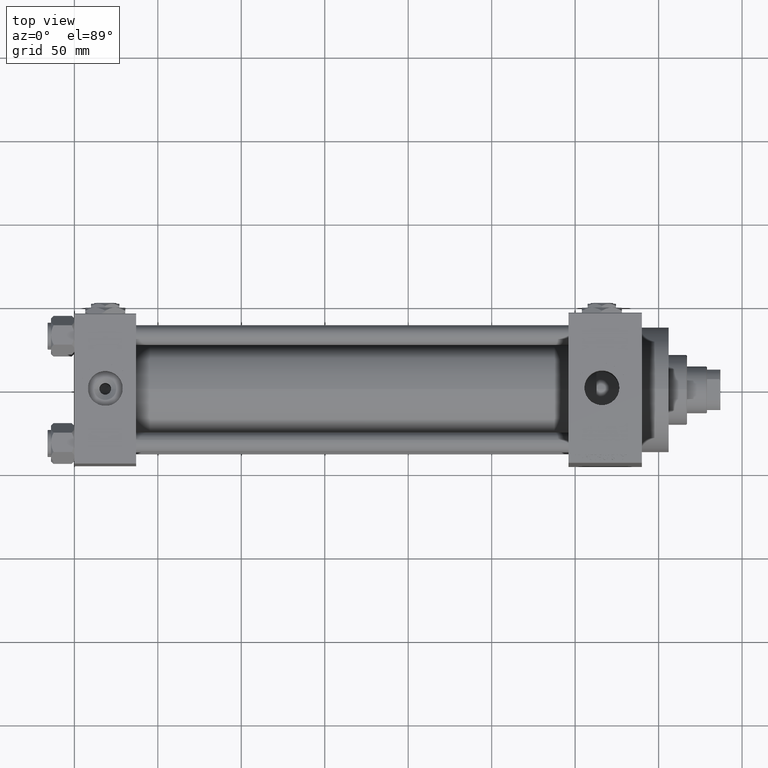
[diagram: clean part render]
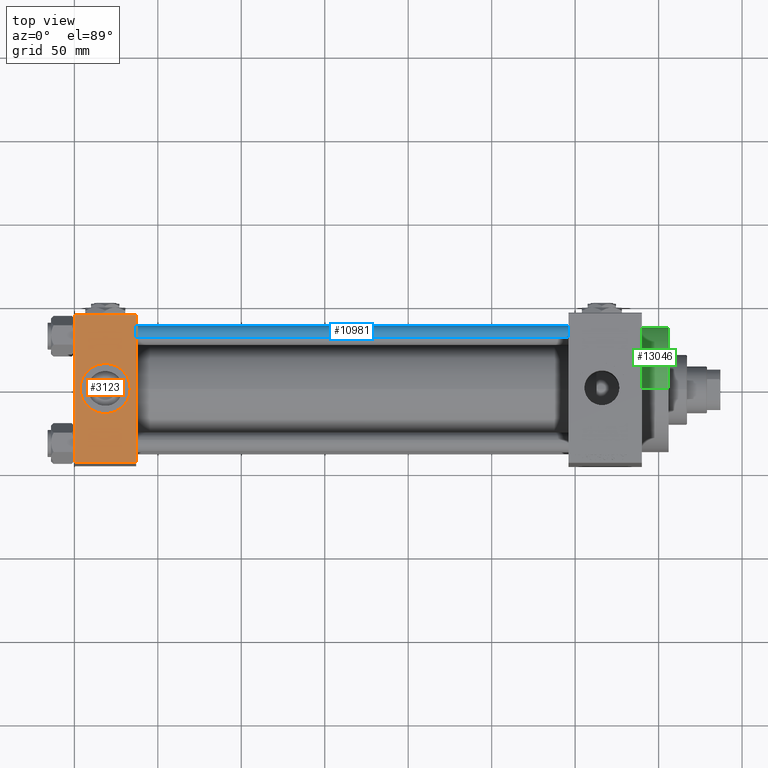
[diagram: same view with three faces highlighted in distinct colors, each labeled with its STEP entity id]
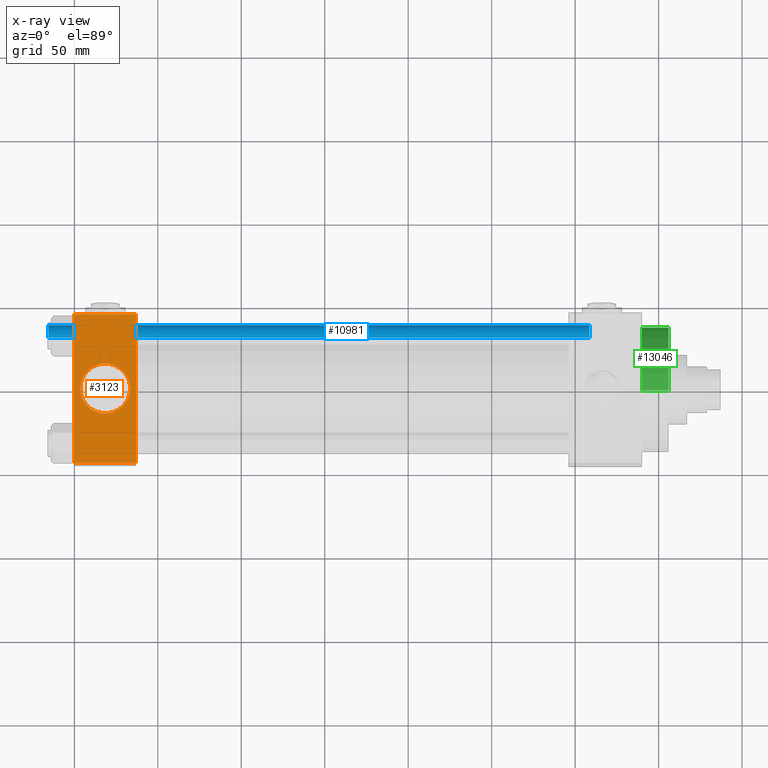
[diagram: x-ray of the same camera — body ghosted, the three highlighted faces saturated]
A machine part, top view with three faces highlighted in distinct colors.
The next image is the same camera in x-ray (body ghosted, the three faces saturated) — at least one of them is partly hidden behind the body in this view.
Their STEP definitions:

[orange] entity #3123 — the highlighted planar face has unit normal (0, 0, -1).
#1158 = DIRECTION ( 'NONE',  ( 1.000000000000000000, 0.000000000000000000, 0.000000000000000000 ) ) ;
#2784 = AXIS2_PLACEMENT_3D ( 'NONE', #29391, #29635, #30124 ) ;
#3123 = ADVANCED_FACE ( 'NONE', ( #22386, #5403 ), #20367, .F. ) ;
#3482 = EDGE_CURVE ( 'NONE', #12128, #29692, #39502, .T. ) ;
#4700 = ORIENTED_EDGE ( 'NONE', *, *, #14374, .F. ) ;
#5403 = FACE_OUTER_BOUND ( 'NONE', #14397, .T. ) ;
#5641 = LINE ( 'NONE', #20613, #41738 ) ;
#6182 = EDGE_LOOP ( 'NONE', ( #4700, #17608 ) ) ;
#6424 = AXIS2_PLACEMENT_3D ( 'NONE', #9145, #31827, #47033 ) ;
#8345 = CARTESIAN_POINT ( 'NONE',  ( 0.000000000000000000, 44.49999999999998579, 45.00000000000001421 ) ) ;
#8960 = CARTESIAN_POINT ( 'NONE',  ( 37.00000000000000000, 44.99999999999998579, 45.00000000000001421 ) ) ;
#9145 = CARTESIAN_POINT ( 'NONE',  ( 37.00000000000000000, 44.99999999999998579, 45.00000000000001421 ) ) ;
#12049 = CARTESIAN_POINT ( 'NONE',  ( 0.000000000000000000, 44.99999999999998579, 45.00000000000001421 ) ) ;
#12128 = VERTEX_POINT ( 'NONE', #20699 ) ;
#12811 = DIRECTION ( 'NONE',  ( -1.000000000000000000, 0.000000000000000000, 0.000000000000000000 ) ) ;
#14374 = EDGE_CURVE ( 'NONE', #34368, #38148, #14782, .T. ) ;
#14397 = EDGE_LOOP ( 'NONE', ( #19428, #33898, #38912, #49048 ) ) ;
#14782 = CIRCLE ( 'NONE', #23422, 15.00000000000000355 ) ;
#15013 = EDGE_CURVE ( 'NONE', #23931, #45213, #5641, .T. ) ;
#15538 = DIRECTION ( 'NONE',  ( 0.000000000000000000, -1.000000000000000000, -1.541976423090495387E-16 ) ) ;
#15754 = EDGE_CURVE ( 'NONE', #12128, #45213, #16933, .T. ) ;
#15794 = EDGE_CURVE ( 'NONE', #38148, #34368, #39404, .T. ) ;
#16933 = LINE ( 'NONE', #8960, #36196 ) ;
#17608 = ORIENTED_EDGE ( 'NONE', *, *, #15794, .F. ) ;
#19428 = ORIENTED_EDGE ( 'NONE', *, *, #22377, .T. ) ;
#20157 = CARTESIAN_POINT ( 'NONE',  ( 0.000000000000000000, -44.49999999999995737, 45.00000000000000000 ) ) ;
#20367 = PLANE ( 'NONE',  #6424 ) ;
#20613 = CARTESIAN_POINT ( 'NONE',  ( 37.00000000000000000, -44.49999999999998579, 45.00000000000000000 ) ) ;
#20699 = CARTESIAN_POINT ( 'NONE',  ( 37.00000000000000000, 44.49999999999998579, 45.00000000000001421 ) ) ;
#22377 = EDGE_CURVE ( 'NONE', #29692, #23931, #46442, .T. ) ;
#22386 = FACE_BOUND ( 'NONE', #6182, .T. ) ;
#23422 = AXIS2_PLACEMENT_3D ( 'NONE', #47887, #43902, #28454 ) ;
#23931 = VERTEX_POINT ( 'NONE', #20157 ) ;
#26953 = CARTESIAN_POINT ( 'NONE',  ( 0.000000000000000000, 44.49999999999998579, 45.00000000000001421 ) ) ;
#27754 = CARTESIAN_POINT ( 'NONE',  ( 33.50000000000000000, -8.673617379884038628E-15, 45.00000000000000711 ) ) ;
#28454 = DIRECTION ( 'NONE',  ( 1.000000000000000000, 0.000000000000000000, 0.000000000000000000 ) ) ;
#29391 = CARTESIAN_POINT ( 'NONE',  ( 18.50000000000000000, -8.673617379884038628E-15, 45.00000000000000711 ) ) ;
#29448 = CARTESIAN_POINT ( 'NONE',  ( 3.499999999999997780, -6.836647181163008250E-15, 45.00000000000000711 ) ) ;
#29635 = DIRECTION ( 'NONE',  ( 0.000000000000000000, 0.000000000000000000, 1.000000000000000000 ) ) ;
#29692 = VERTEX_POINT ( 'NONE', #26953 ) ;
#30124 = DIRECTION ( 'NONE',  ( 1.000000000000000000, 0.000000000000000000, 0.000000000000000000 ) ) ;
#31827 = DIRECTION ( 'NONE',  ( 0.000000000000000000, 1.541976423090495633E-16, -1.000000000000000000 ) ) ;
#32139 = DIRECTION ( 'NONE',  ( 0.000000000000000000, -1.000000000000000000, -1.541976423090495387E-16 ) ) ;
#33898 = ORIENTED_EDGE ( 'NONE', *, *, #15013, .T. ) ;
#34368 = VERTEX_POINT ( 'NONE', #27754 ) ;
#35884 = VECTOR ( 'NONE', #12811, 1000.000000000000000 ) ;
#36196 = VECTOR ( 'NONE', #32139, 1000.000000000000000 ) ;
#38148 = VERTEX_POINT ( 'NONE', #29448 ) ;
#38200 = CARTESIAN_POINT ( 'NONE',  ( 37.00000000000000000, -44.49999999999995737, 45.00000000000000000 ) ) ;
#38912 = ORIENTED_EDGE ( 'NONE', *, *, #15754, .F. ) ;
#39404 = CIRCLE ( 'NONE', #2784, 15.00000000000000355 ) ;
#39502 = LINE ( 'NONE', #8345, #35884 ) ;
#41738 = VECTOR ( 'NONE', #1158, 1000.000000000000000 ) ;
#42320 = VECTOR ( 'NONE', #15538, 1000.000000000000000 ) ;
#43902 = DIRECTION ( 'NONE',  ( 0.000000000000000000, 0.000000000000000000, 1.000000000000000000 ) ) ;
#45213 = VERTEX_POINT ( 'NONE', #38200 ) ;
#46442 = LINE ( 'NONE', #12049, #42320 ) ;
#47033 = DIRECTION ( 'NONE',  ( 0.000000000000000000, 1.000000000000000000, 1.541976423090495633E-16 ) ) ;
#47887 = CARTESIAN_POINT ( 'NONE',  ( 18.50000000000000000, -8.673617379884038628E-15, 45.00000000000000711 ) ) ;
#49048 = ORIENTED_EDGE ( 'NONE', *, *, #3482, .T. ) ;

[blue] entity #10981 — the highlighted cylindrical surface (edge-blend (fillet) strip) has radius 6 mm, axis along (-1, -0, 0).
#866 = VERTEX_POINT ( 'NONE', #13135 ) ;
#4129 = ORIENTED_EDGE ( 'NONE', *, *, #48001, .F. ) ;
#4621 = VECTOR ( 'NONE', #19554, 1000.000000000000000 ) ;
#8235 = FACE_OUTER_BOUND ( 'NONE', #16819, .T. ) ;
#8491 = CYLINDRICAL_SURFACE ( 'NONE', #36958, 6.000000000000000888 ) ;
#9989 = DIRECTION ( 'NONE',  ( -0.000000000000000000, -0.000000000000000000, -1.000000000000000000 ) ) ;
#10981 = ADVANCED_FACE ( 'NONE', ( #8235 ), #8491, .T. ) ;
#12899 = DIRECTION ( 'NONE',  ( 1.000000000000000000, 0.000000000000000000, 0.000000000000000000 ) ) ;
#13135 = CARTESIAN_POINT ( 'NONE',  ( -6.000000000000000888, 0.000000000000000000, 324.5000000000001137 ) ) ;
#14219 = CARTESIAN_POINT ( 'NONE',  ( -6.000000000000000888, 0.000000000000000000, 325.0000000000000000 ) ) ;
#16649 = CARTESIAN_POINT ( 'NONE',  ( 0.000000000000000000, 0.000000000000000000, 0.5000000000000004441 ) ) ;
#16705 = DIRECTION ( 'NONE',  ( -0.000000000000000000, -0.000000000000000000, -1.000000000000000000 ) ) ;
#16819 = EDGE_LOOP ( 'NONE', ( #41935, #26101, #42049, #4129 ) ) ;
#17483 = EDGE_CURVE ( 'NONE', #866, #18652, #33849, .T. ) ;
#18652 = VERTEX_POINT ( 'NONE', #37405 ) ;
#19539 = AXIS2_PLACEMENT_3D ( 'NONE', #22532, #33758, #45470 ) ;
#19554 = DIRECTION ( 'NONE',  ( -0.000000000000000000, -0.000000000000000000, -1.000000000000000000 ) ) ;
#20298 = LINE ( 'NONE', #34994, #4621 ) ;
#22532 = CARTESIAN_POINT ( 'NONE',  ( 0.000000000000000000, 0.000000000000000000, 324.5000000000001137 ) ) ;
#23695 = DIRECTION ( 'NONE',  ( -1.000000000000000000, 0.000000000000000000, 0.000000000000000000 ) ) ;
#25935 = EDGE_CURVE ( 'NONE', #31666, #40738, #32899, .T. ) ;
#26101 = ORIENTED_EDGE ( 'NONE', *, *, #44296, .T. ) ;
#28604 = DIRECTION ( 'NONE',  ( -0.000000000000000000, -0.000000000000000000, 1.000000000000000000 ) ) ;
#29337 = CARTESIAN_POINT ( 'NONE',  ( -6.000000000000000888, 0.000000000000000000, 0.5000000000000004441 ) ) ;
#31666 = VERTEX_POINT ( 'NONE', #41550 ) ;
#31911 = CARTESIAN_POINT ( 'NONE',  ( 0.000000000000000000, 0.000000000000000000, 325.0000000000000000 ) ) ;
#32899 = CIRCLE ( 'NONE', #44828, 6.000000000000000888 ) ;
#33167 = LINE ( 'NONE', #14219, #47310 ) ;
#33758 = DIRECTION ( 'NONE',  ( 0.000000000000000000, 0.000000000000000000, -1.000000000000000000 ) ) ;
#33849 = CIRCLE ( 'NONE', #19539, 6.000000000000000888 ) ;
#34994 = CARTESIAN_POINT ( 'NONE',  ( 6.000000000000000888, 7.347880794884120722E-16, 325.0000000000000000 ) ) ;
#36958 = AXIS2_PLACEMENT_3D ( 'NONE', #31911, #16705, #23695 ) ;
#37405 = CARTESIAN_POINT ( 'NONE',  ( 6.000000000000000888, 7.347880794884120722E-16, 324.5000000000001137 ) ) ;
#40738 = VERTEX_POINT ( 'NONE', #29337 ) ;
#41550 = CARTESIAN_POINT ( 'NONE',  ( 6.000000000000000888, 7.347880794884120722E-16, 0.5000000000000004441 ) ) ;
#41935 = ORIENTED_EDGE ( 'NONE', *, *, #17483, .T. ) ;
#42049 = ORIENTED_EDGE ( 'NONE', *, *, #25935, .T. ) ;
#44296 = EDGE_CURVE ( 'NONE', #18652, #31666, #20298, .T. ) ;
#44828 = AXIS2_PLACEMENT_3D ( 'NONE', #16649, #28604, #12899 ) ;
#45470 = DIRECTION ( 'NONE',  ( 1.000000000000000000, 0.000000000000000000, 0.000000000000000000 ) ) ;
#47310 = VECTOR ( 'NONE', #9989, 1000.000000000000000 ) ;
#48001 = EDGE_CURVE ( 'NONE', #866, #40738, #33167, .T. ) ;

[green] entity #13046 — the highlighted cylindrical surface (partial cylindrical patch) has radius 37.5 mm, axis along (-1, -0, -0).
#315 = EDGE_CURVE ( 'NONE', #7196, #31116, #16776, .T. ) ;
#560 = CARTESIAN_POINT ( 'NONE',  ( 356.0000000000000000, 4.592425496802575156E-15, -37.50000000000000711 ) ) ;
#1145 = VECTOR ( 'NONE', #11975, 1000.000000000000000 ) ;
#1291 = DIRECTION ( 'NONE',  ( 0.000000000000000000, 0.000000000000000000, -1.000000000000000000 ) ) ;
#3434 = VERTEX_POINT ( 'NONE', #37533 ) ;
#4256 = DIRECTION ( 'NONE',  ( 0.000000000000000000, 0.000000000000000000, 1.000000000000000000 ) ) ;
#5094 = CIRCLE ( 'NONE', #13854, 37.50000000000000711 ) ;
#5444 = ORIENTED_EDGE ( 'NONE', *, *, #27391, .F. ) ;
#7196 = VERTEX_POINT ( 'NONE', #25258 ) ;
#7875 = ORIENTED_EDGE ( 'NONE', *, *, #28817, .T. ) ;
#11753 = CYLINDRICAL_SURFACE ( 'NONE', #23497, 37.50000000000000711 ) ;
#11975 = DIRECTION ( 'NONE',  ( -1.000000000000000000, -0.000000000000000000, -0.000000000000000000 ) ) ;
#12223 = LINE ( 'NONE', #42886, #1145 ) ;
#13046 = ADVANCED_FACE ( 'NONE', ( #23956 ), #11753, .T. ) ;
#13854 = AXIS2_PLACEMENT_3D ( 'NONE', #38945, #46174, #23745 ) ;
#16776 = CIRCLE ( 'NONE', #44652, 37.50000000000000711 ) ;
#19505 = CARTESIAN_POINT ( 'NONE',  ( 339.9999999999999432, 0.000000000000000000, 0.000000000000000000 ) ) ;
#19972 = EDGE_CURVE ( 'NONE', #3434, #31116, #28541, .T. ) ;
#21200 = CARTESIAN_POINT ( 'NONE',  ( 339.9999999999999432, 0.000000000000000000, 37.50000000000000711 ) ) ;
#23215 = DIRECTION ( 'NONE',  ( -1.000000000000000000, -0.000000000000000000, -0.000000000000000000 ) ) ;
#23497 = AXIS2_PLACEMENT_3D ( 'NONE', #26962, #23215, #4256 ) ;
#23745 = DIRECTION ( 'NONE',  ( 0.000000000000000000, 0.000000000000000000, -1.000000000000000000 ) ) ;
#23915 = ORIENTED_EDGE ( 'NONE', *, *, #19972, .F. ) ;
#23956 = FACE_OUTER_BOUND ( 'NONE', #35165, .T. ) ;
#24059 = DIRECTION ( 'NONE',  ( -1.000000000000000000, -0.000000000000000000, -0.000000000000000000 ) ) ;
#24752 = VECTOR ( 'NONE', #24059, 1000.000000000000000 ) ;
#25258 = CARTESIAN_POINT ( 'NONE',  ( 339.9999999999999432, 4.592425496802575156E-15, -37.50000000000000711 ) ) ;
#26962 = CARTESIAN_POINT ( 'NONE',  ( 356.0000000000000000, 0.000000000000000000, 0.000000000000000000 ) ) ;
#26991 = DIRECTION ( 'NONE',  ( 1.000000000000000000, 0.000000000000000000, 0.000000000000000000 ) ) ;
#27330 = VERTEX_POINT ( 'NONE', #560 ) ;
#27391 = EDGE_CURVE ( 'NONE', #27330, #3434, #5094, .T. ) ;
#27423 = ORIENTED_EDGE ( 'NONE', *, *, #315, .T. ) ;
#28541 = LINE ( 'NONE', #32281, #24752 ) ;
#28817 = EDGE_CURVE ( 'NONE', #27330, #7196, #12223, .T. ) ;
#31116 = VERTEX_POINT ( 'NONE', #21200 ) ;
#32281 = CARTESIAN_POINT ( 'NONE',  ( 356.0000000000000000, 0.000000000000000000, 37.50000000000000711 ) ) ;
#35165 = EDGE_LOOP ( 'NONE', ( #5444, #7875, #27423, #23915 ) ) ;
#37533 = CARTESIAN_POINT ( 'NONE',  ( 356.0000000000000000, 0.000000000000000000, 37.50000000000000711 ) ) ;
#38945 = CARTESIAN_POINT ( 'NONE',  ( 356.0000000000000000, 0.000000000000000000, 0.000000000000000000 ) ) ;
#42886 = CARTESIAN_POINT ( 'NONE',  ( 356.0000000000000000, 4.592425496802575156E-15, -37.50000000000000711 ) ) ;
#44652 = AXIS2_PLACEMENT_3D ( 'NONE', #19505, #26991, #1291 ) ;
#46174 = DIRECTION ( 'NONE',  ( 1.000000000000000000, 0.000000000000000000, 0.000000000000000000 ) ) ;